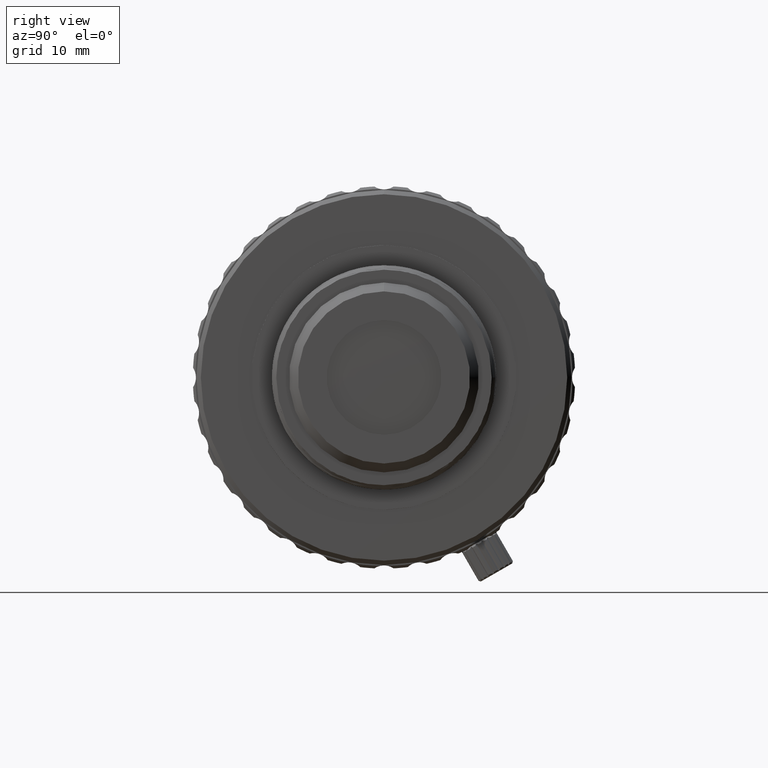
[diagram: clean part render]
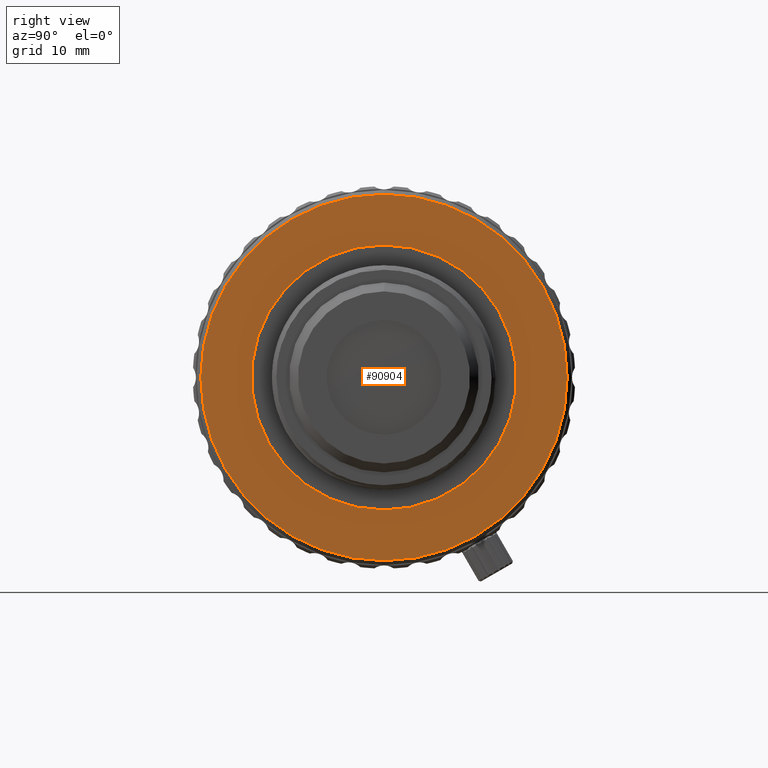
[diagram: same view with one face highlighted and labeled with its STEP entity id]
A machine part, right view. The second image highlights one B-rep face of the part: STEP entity #90904.
In plain terms, the highlighted planar face has unit normal (1, 0, 0).
Its self-contained STEP definition (entity closure, byte-faithful):
#3018 = VERTEX_POINT ( 'NONE', #41591 ) ;
#3121 = DIRECTION ( 'NONE',  ( -1.000000000000000000, -0.000000000000000000, -0.000000000000000000 ) ) ;
#3404 = CARTESIAN_POINT ( 'NONE',  ( 44.72899999999999920, 9.592326932761001624E-14, 6.071532165918824830E-14 ) ) ;
#5378 = ORIENTED_EDGE ( 'NONE', *, *, #80037, .T. ) ;
#5679 = CARTESIAN_POINT ( 'NONE',  ( 44.72899999999999920, 9.592326932761001624E-14, 20.74999697463144344 ) ) ;
#9594 = EDGE_LOOP ( 'NONE', ( #5378, #96777 ) ) ;
#12183 = DIRECTION ( 'NONE',  ( 0.000000000000000000, -1.000000000000000000, 0.000000000000000000 ) ) ;
#13559 = DIRECTION ( 'NONE',  ( 0.000000000000000000, 0.000000000000000000, -1.000000000000000000 ) ) ;
#13950 = CIRCLE ( 'NONE', #77397, 20.74999697463138304 ) ;
#15319 = AXIS2_PLACEMENT_3D ( 'NONE', #78747, #61555, #12183 ) ;
#20079 = CIRCLE ( 'NONE', #44048, 15.00000000000000000 ) ;
#26022 = EDGE_CURVE ( 'NONE', #35229, #3018, #72459, .T. ) ;
#28796 = FACE_BOUND ( 'NONE', #9594, .T. ) ;
#29618 = CARTESIAN_POINT ( 'NONE',  ( 44.72899999999945209, 0.000000000000000000, 0.000000000000000000 ) ) ;
#35229 = VERTEX_POINT ( 'NONE', #5679 ) ;
#41181 = CARTESIAN_POINT ( 'NONE',  ( 44.72899999999999920, 9.592326932761001624E-14, 6.071532165918824830E-14 ) ) ;
#41591 = CARTESIAN_POINT ( 'NONE',  ( 44.72899999999999920, 9.849502723085481984E-14, -20.74999697463131909 ) ) ;
#43291 = AXIS2_PLACEMENT_3D ( 'NONE', #3404, #94605, #78538 ) ;
#44048 = AXIS2_PLACEMENT_3D ( 'NONE', #69123, #3121, #44398 ) ;
#44398 = DIRECTION ( 'NONE',  ( 0.000000000000000000, 0.000000000000000000, -1.000000000000000000 ) ) ;
#45706 = ORIENTED_EDGE ( 'NONE', *, *, #48441, .T. ) ;
#48441 = EDGE_CURVE ( 'NONE', #3018, #35229, #13950, .T. ) ;
#49130 = VERTEX_POINT ( 'NONE', #81776 ) ;
#49275 = DIRECTION ( 'NONE',  ( 0.000000000000000000, 0.000000000000000000, -1.000000000000000000 ) ) ;
#60302 = VERTEX_POINT ( 'NONE', #102719 ) ;
#61555 = DIRECTION ( 'NONE',  ( 1.000000000000000000, 0.000000000000000000, 0.000000000000000000 ) ) ;
#62085 = FACE_OUTER_BOUND ( 'NONE', #79344, .T. ) ;
#62337 = AXIS2_PLACEMENT_3D ( 'NONE', #29618, #63464, #13559 ) ;
#63464 = DIRECTION ( 'NONE',  ( -1.000000000000000000, -0.000000000000000000, -0.000000000000000000 ) ) ;
#65919 = DIRECTION ( 'NONE',  ( 1.000000000000000000, 0.000000000000000000, 0.000000000000000000 ) ) ;
#67461 = CIRCLE ( 'NONE', #62337, 15.00000000000000000 ) ;
#69123 = CARTESIAN_POINT ( 'NONE',  ( 44.72899999999945209, 0.000000000000000000, 0.000000000000000000 ) ) ;
#72459 = CIRCLE ( 'NONE', #43291, 20.74999697463138304 ) ;
#77397 = AXIS2_PLACEMENT_3D ( 'NONE', #41181, #65919, #49275 ) ;
#78538 = DIRECTION ( 'NONE',  ( 0.000000000000000000, 0.000000000000000000, -1.000000000000000000 ) ) ;
#78747 = CARTESIAN_POINT ( 'NONE',  ( 44.72899999999999920, 21.57999999999999829, 21.59494639543999739 ) ) ;
#79344 = EDGE_LOOP ( 'NONE', ( #85712, #45706 ) ) ;
#80037 = EDGE_CURVE ( 'NONE', #49130, #60302, #67461, .T. ) ;
#81776 = CARTESIAN_POINT ( 'NONE',  ( 44.72899999999945209, 0.000000000000000000, -15.00000000000000000 ) ) ;
#85712 = ORIENTED_EDGE ( 'NONE', *, *, #26022, .T. ) ;
#89492 = EDGE_CURVE ( 'NONE', #60302, #49130, #20079, .T. ) ;
#90904 = ADVANCED_FACE ( 'NONE', ( #28796, #62085 ), #103402, .T. ) ;
#94605 = DIRECTION ( 'NONE',  ( 1.000000000000000000, 0.000000000000000000, 0.000000000000000000 ) ) ;
#96777 = ORIENTED_EDGE ( 'NONE', *, *, #89492, .T. ) ;
#102719 = CARTESIAN_POINT ( 'NONE',  ( 44.72899999999945209, 1.836970198721029589E-15, 15.00000000000000000 ) ) ;
#103402 = PLANE ( 'NONE',  #15319 ) ;